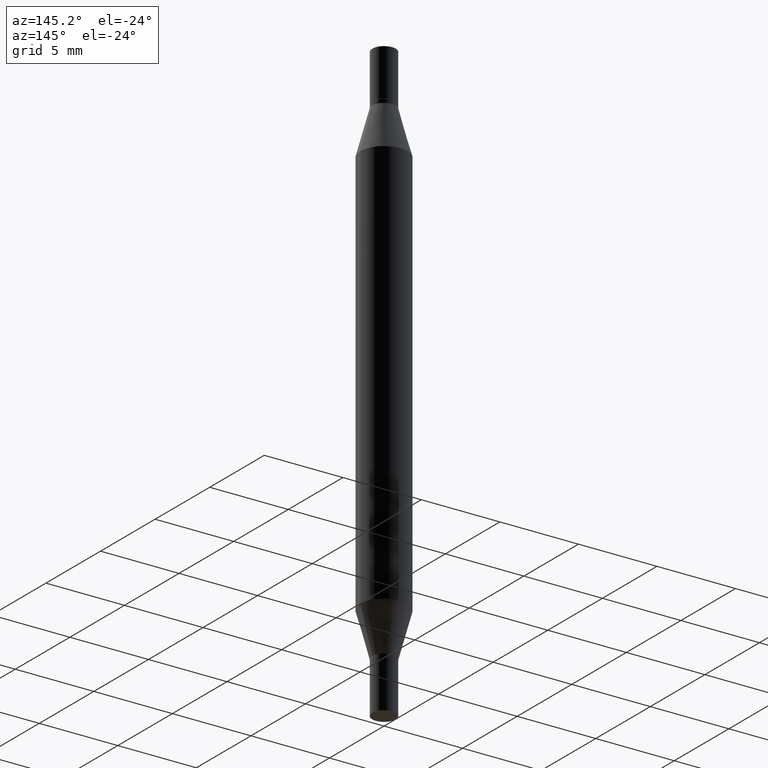
[diagram: clean part render]
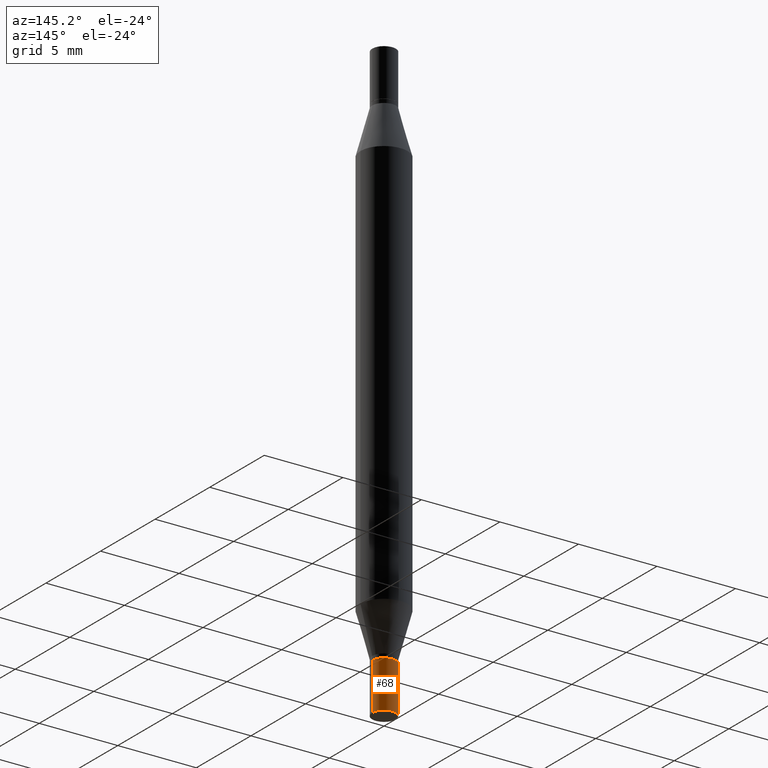
[diagram: same view with one face highlighted and labeled with its STEP entity id]
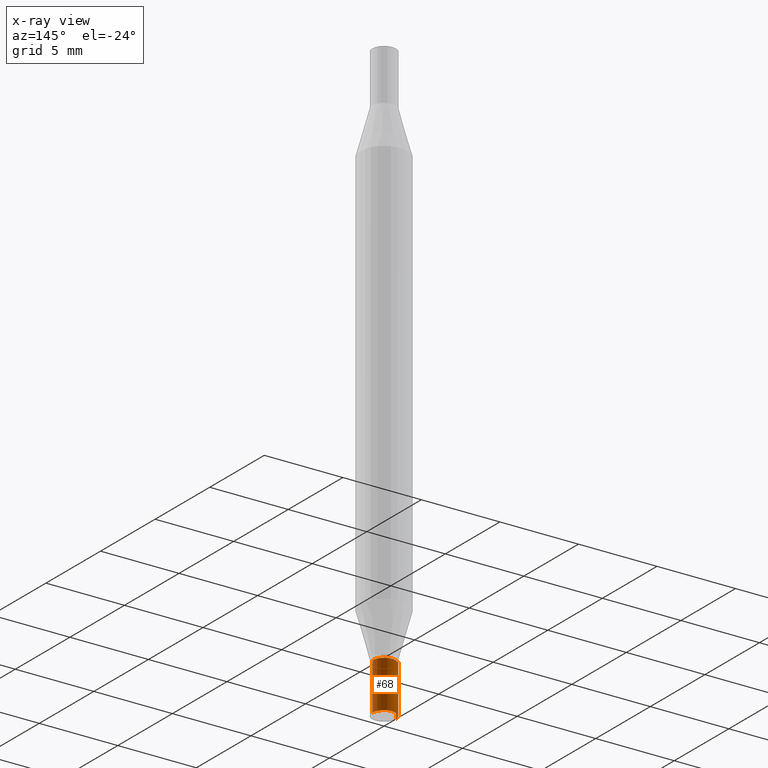
[diagram: x-ray of the same camera — body ghosted, the highlighted face saturated]
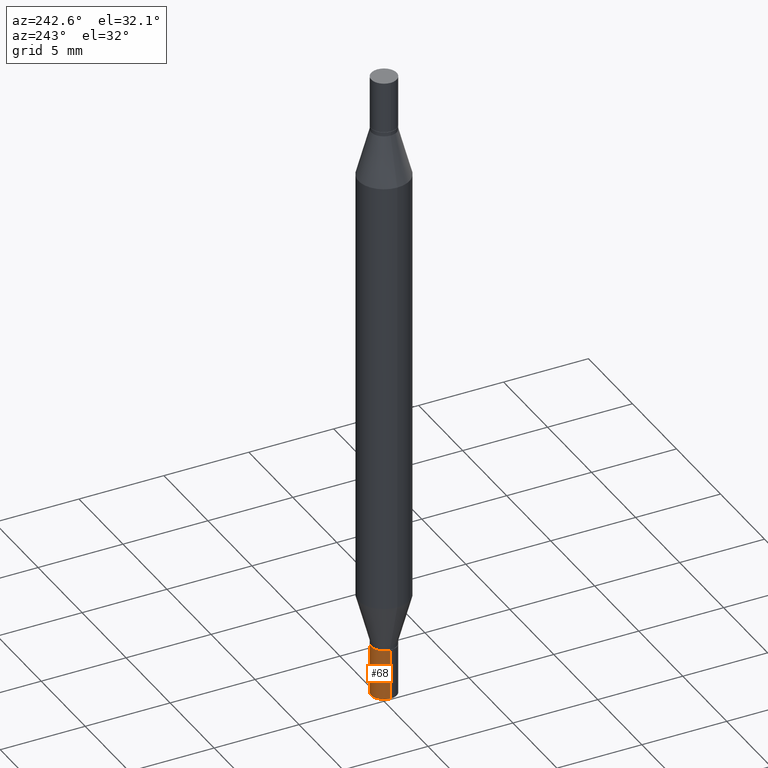
[diagram: same view with one face highlighted and labeled with its STEP entity id]
A machine part, auxiliary view. The second image highlights one B-rep face of the part: STEP entity #68.
The next image is the same camera in x-ray: the body ghosted, the highlighted face saturated — about 0% of this face is hidden behind the body in this view.
A second angle (auxiliary view) of the same face is appended — the face is thin or edge-on in the first view.
In plain terms, the highlighted cylindrical surface (edge-blend (fillet) strip) has radius 0.7506 mm, axis along (-0, 0, 1).
Its self-contained STEP definition (entity closure, byte-faithful):
#32 = DIRECTION ( 'NONE',  ( -2.445468806185136597E-29, 3.491481338843145583E-15, 1.000000000000000000 ) ) ;
#68 = ADVANCED_FACE ( 'NONE', ( #475 ), #340, .T. ) ;
#99 = EDGE_CURVE ( 'NONE', #766, #526, #968, .T. ) ;
#114 = DIRECTION ( 'NONE',  ( 1.000000000000000000, -6.982962677686261977E-15, 0.000000000000000000 ) ) ;
#154 = VERTEX_POINT ( 'NONE', #891 ) ;
#222 = CARTESIAN_POINT ( 'NONE',  ( -0.02954999999999999988, 2.099653784171096041E-16, -1.453545319170324550E-30 ) ) ;
#231 = EDGE_CURVE ( 'NONE', #154, #526, #895, .T. ) ;
#245 = CARTESIAN_POINT ( 'NONE',  ( 3.658665880933582389E-29, -5.223605231043229660E-15, -1.496099999999999985 ) ) ;
#333 = CARTESIAN_POINT ( 'NONE',  ( 0.02954999999999999988, -5.017607832051483561E-15, -1.377999999999999892 ) ) ;
#340 = CYLINDRICAL_SURFACE ( 'NONE', #672, 0.02954999999999999988 ) ;
#399 = DIRECTION ( 'NONE',  ( -2.445468806185136597E-29, 3.491481338843145583E-15, 1.000000000000000000 ) ) ;
#407 = CARTESIAN_POINT ( 'NONE',  ( 3.369856014923117948E-29, -4.811261284925853951E-15, -1.377999999999999892 ) ) ;
#447 = EDGE_LOOP ( 'NONE', ( #491, #541, #737, #840 ) ) ;
#464 = VERTEX_POINT ( 'NONE', #796 ) ;
#465 = AXIS2_PLACEMENT_3D ( 'NONE', #245, #399, #928 ) ;
#473 = LINE ( 'NONE', #631, #626 ) ;
#475 = FACE_OUTER_BOUND ( 'NONE', #447, .T. ) ;
#491 = ORIENTED_EDGE ( 'NONE', *, *, #712, .T. ) ;
#499 = CIRCLE ( 'NONE', #465, 0.02954999999999999988 ) ;
#505 = DIRECTION ( 'NONE',  ( -2.445468806185136877E-29, 3.491481338843145188E-15, 1.000000000000000000 ) ) ;
#526 = VERTEX_POINT ( 'NONE', #576 ) ;
#541 = ORIENTED_EDGE ( 'NONE', *, *, #231, .T. ) ;
#576 = CARTESIAN_POINT ( 'NONE',  ( -0.02954999999999999988, -4.807467879567433237E-15, -1.377999999999999892 ) ) ;
#577 = DIRECTION ( 'NONE',  ( 1.000000000000000000, -6.982962677686266711E-15, 4.876176775795935793E-29 ) ) ;
#592 = EDGE_CURVE ( 'NONE', #464, #766, #473, .T. ) ;
#626 = VECTOR ( 'NONE', #505, 39.37007874015748143 ) ;
#631 = CARTESIAN_POINT ( 'NONE',  ( 0.02954999999999999988, -2.063465471256291914E-16, 1.440910237247699070E-30 ) ) ;
#672 = AXIS2_PLACEMENT_3D ( 'NONE', #715, #946, #577 ) ;
#712 = EDGE_CURVE ( 'NONE', #464, #154, #499, .T. ) ;
#715 = CARTESIAN_POINT ( 'NONE',  ( 0.000000000000000000, 0.000000000000000000, 0.000000000000000000 ) ) ;
#721 = AXIS2_PLACEMENT_3D ( 'NONE', #407, #32, #114 ) ;
#730 = DIRECTION ( 'NONE',  ( -2.445468806185136877E-29, 3.491481338843145188E-15, 1.000000000000000000 ) ) ;
#737 = ORIENTED_EDGE ( 'NONE', *, *, #99, .F. ) ;
#740 = VECTOR ( 'NONE', #730, 39.37007874015748143 ) ;
#766 = VERTEX_POINT ( 'NONE', #333 ) ;
#796 = CARTESIAN_POINT ( 'NONE',  ( 0.02954999999999999988, -5.429951778168858482E-15, -1.496099999999999985 ) ) ;
#840 = ORIENTED_EDGE ( 'NONE', *, *, #592, .F. ) ;
#891 = CARTESIAN_POINT ( 'NONE',  ( -0.02954999999999999988, -4.807467879567433237E-15, -1.496099999999999985 ) ) ;
#895 = LINE ( 'NONE', #222, #740 ) ;
#928 = DIRECTION ( 'NONE',  ( 1.000000000000000000, -6.982962677686261977E-15, 0.000000000000000000 ) ) ;
#946 = DIRECTION ( 'NONE',  ( -2.445468806185136597E-29, 3.491481338843145583E-15, 1.000000000000000000 ) ) ;
#968 = CIRCLE ( 'NONE', #721, 0.02954999999999999988 ) ;